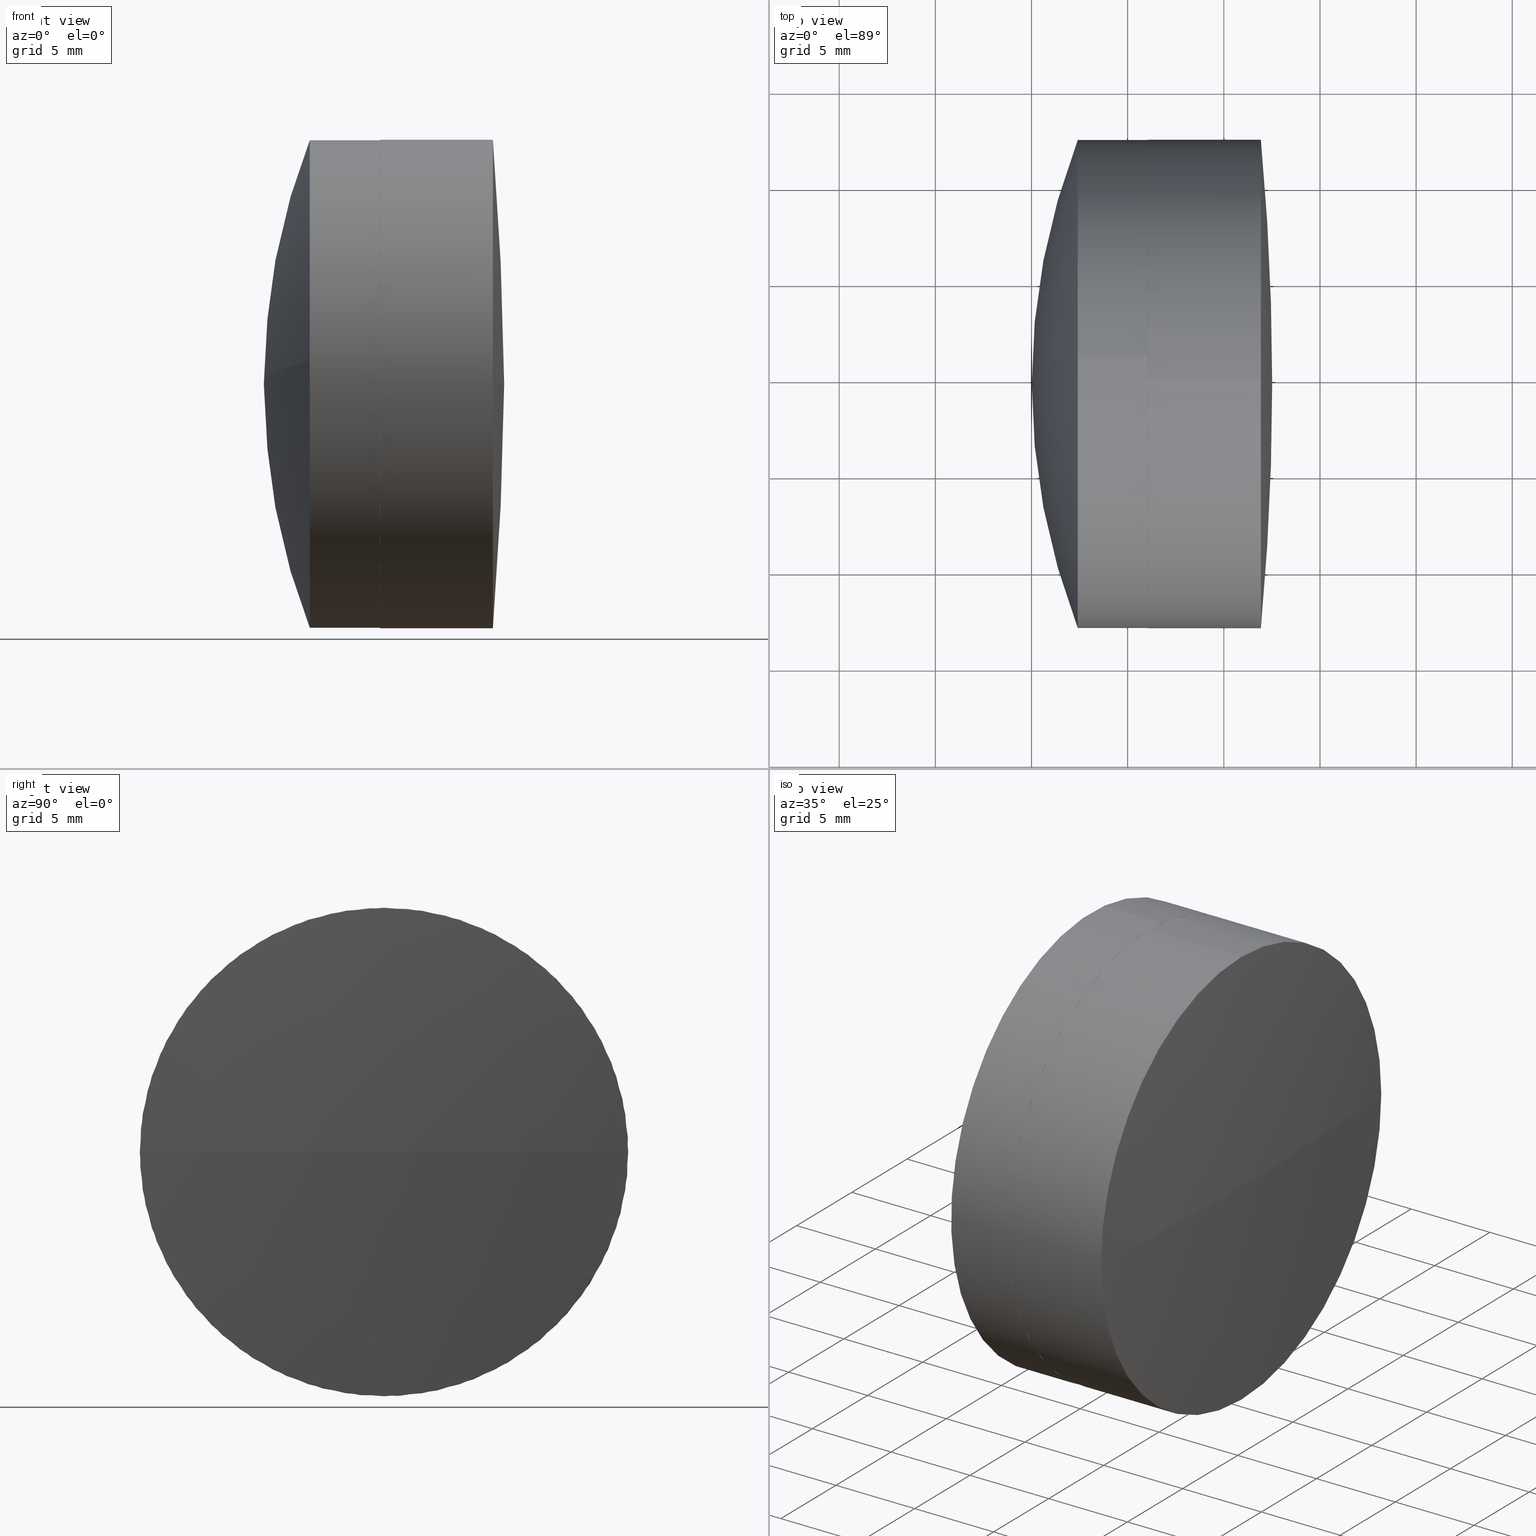
[diagram: canonical four-view strip — front | top / right | iso, engineering-drawing reading convention]
A machine part, canonical four-view strip (front | top / right | iso — engineering-drawing reading convention). The complete STEP part file that produces these views, byte-faithful:
ISO-10303-21;
HEADER;
FILE_DESCRIPTION (( 'STEP AP203' ),
    '1' );
FILE_NAME ('145276.STEP',
    '2024-05-11T06:11:00',
    ( '' ),
    ( '' ),
    'SwSTEP 2.0',
    'SolidWorks 2020',
    '' );
FILE_SCHEMA (( 'CONFIG_CONTROL_DESIGN' ));
ENDSEC;

DATA;
#1 = DIRECTION ( 'NONE',  ( -1.000000000000000000, 2.569559148790645509E-17, 4.163336342344337027E-17 ) ) ;
#2 = CARTESIAN_POINT ( 'NONE',  ( -77.59359883042631623, 28.48110664956988103, -12.64106487517395472 ) ) ;
#3 = DIRECTION ( 'NONE',  ( -1.000000000000000000, 2.569559148790645509E-17, 4.163336342344337027E-17 ) ) ;
#4 = CARTESIAN_POINT ( 'NONE',  ( -79.98416275664021668, 28.48110664956988103, -12.64106487517395649 ) ) ;
#5 = FACE_OUTER_BOUND ( 'NONE', #400, .T. ) ;
#6 = DIRECTION ( 'NONE',  ( -1.000000000000000000, -0.000000000000000000, -0.000000000000000000 ) ) ;
#7 = PERSON_AND_ORGANIZATION_ROLE ( 'classification_officer' ) ;
#8 = CARTESIAN_POINT ( 'NONE',  ( -70.98416275664025932, 29.70318636122672018, 12.69999999999999929 ) ) ;
#9 = FACE_OUTER_BOUND ( 'NONE', #365, .T. ) ;
#10 = VERTEX_POINT ( 'NONE', #410 ) ;
#11 = CC_DESIGN_DATE_AND_TIME_ASSIGNMENT ( #331, #393, ( #387 ) ) ;
#12 = UNCERTAINTY_MEASURE_WITH_UNIT (LENGTH_MEASURE( 1.000000000000000082E-05 ), #212, 'distance_accuracy_value', 'NONE');
#13 = APPROVAL_ROLE ( '' ) ;
#14 = LOCAL_TIME ( 14, 11, 0.000000000000000000, #190 ) ;
#15 = ORIENTED_EDGE ( 'NONE', *, *, #439, .F. ) ;
#16 = EDGE_LOOP ( 'NONE', ( #164, #363, #327, #56 ) ) ;
#17 = EDGE_CURVE ( 'NONE', #338, #135, #186, .T. ) ;
#18 = EDGE_LOOP ( 'NONE', ( #266, #193, #234, #389, #378, #242 ) ) ;
#19 = CIRCLE ( 'NONE', #257, 137.5299999999999727 ) ;
#20 = ORIENTED_EDGE ( 'NONE', *, *, #399, .T. ) ;
#21 = MANIFOLD_SOLID_BREP ( '145276b-1-solid1', #216 ) ;
#22 = VERTEX_POINT ( 'NONE', #29 ) ;
#23 = PERSON_AND_ORGANIZATION_ROLE ( 'design_owner' ) ;
#24 = ORIENTED_EDGE ( 'NONE', *, *, #178, .F. ) ;
#25 = EDGE_CURVE ( 'NONE', #22, #368, #195, .T. ) ;
#26 = DIRECTION ( 'NONE',  ( 4.391276449164055718E-17, 0.09622674894935856482, 0.9953594389900751738 ) ) ;
#27 = AXIS2_PLACEMENT_3D ( 'NONE', #115, #152, #290 ) ;
#28 = AXIS2_PLACEMENT_3D ( 'NONE', #442, #349, #173 ) ;
#29 = CARTESIAN_POINT ( 'NONE',  ( -67.48416275664025932, 29.70318636122672729, 0.000000000000000000 ) ) ;
#30 = EDGE_CURVE ( 'NONE', #201, #428, #425, .T. ) ;
#31 = DIRECTION ( 'NONE',  ( -4.391276449164055102E-17, -0.09622674894935855094, -0.9953594389900750627 ) ) ;
#32 = DIRECTION ( 'NONE',  ( 0.000000000000000000, 1.000000000000000000, 0.000000000000000000 ) ) ;
#33 = CIRCLE ( 'NONE', #437, 12.69999999999999929 ) ;
#34 = CIRCLE ( 'NONE', #249, 12.69999999999999929 ) ;
#35 = DIRECTION ( 'NONE',  ( 0.000000000000000000, 0.9953594389900750627, -0.09622674894935842604 ) ) ;
#36 = DIRECTION ( 'NONE',  ( 0.000000000000000000, 0.000000000000000000, 1.000000000000000000 ) ) ;
#37 =( NAMED_UNIT ( * ) PLANE_ANGLE_UNIT ( ) SI_UNIT ( $, .RADIAN. ) );
#38 = DIRECTION ( 'NONE',  ( -1.000000000000000000, 2.569559148790645509E-17, 4.163336342344337027E-17 ) ) ;
#39 = ADVANCED_FACE ( 'NONE', ( #440 ), #66, .T. ) ;
#40 = SPHERICAL_SURFACE ( 'NONE', #196, 28.77000000000000313 ) ;
#41 = AXIS2_PLACEMENT_3D ( 'NONE', #372, #177, #406 ) ;
#42 = APPROVAL_DATE_TIME ( #236, #46 ) ;
#43 = LOCAL_TIME ( 14, 11, 0.000000000000000000, #188 ) ;
#44 = CARTESIAN_POINT ( 'NONE',  ( -205.0141627566402462, 29.70318636122672018, 0.000000000000000000 ) ) ;
#45 = PERSON_AND_ORGANIZATION ( #50, #375 ) ;
#46 = APPROVAL ( #424, 'δָ��' ) ;
#47 = DIRECTION ( 'NONE',  ( 0.000000000000000000, 0.000000000000000000, 1.000000000000000000 ) ) ;
#48 = PERSON_AND_ORGANIZATION ( #50, #375 ) ;
#49 = ORIENTED_EDGE ( 'NONE', *, *, #17, .F. ) ;
#50 = PERSON ( 'δָ��', 'δָ��', 'δָ��', ('δָ��'), ('δָ��'), ('δָ��') ) ;
#51 = PERSON_AND_ORGANIZATION ( #50, #375 ) ;
#52 = CIRCLE ( 'NONE', #162, 28.77000000000000313 ) ;
#53 = AXIS2_PLACEMENT_3D ( 'NONE', #104, #114, #244 ) ;
#54 = EDGE_LOOP ( 'NONE', ( #203, #171, #20, #63 ) ) ;
#55 = ORIENTED_EDGE ( 'NONE', *, *, #232, .T. ) ;
#56 = ORIENTED_EDGE ( 'NONE', *, *, #116, .F. ) ;
#57 = AXIS2_PLACEMENT_3D ( 'NONE', #113, #386, #77 ) ;
#58 = ORIENTED_EDGE ( 'NONE', *, *, #427, .T. ) ;
#59 = AXIS2_PLACEMENT_3D ( 'NONE', #220, #278, #35 ) ;
#60 = DIRECTION ( 'NONE',  ( 1.000000000000000000, 0.000000000000000000, 0.000000000000000000 ) ) ;
#61 = EDGE_CURVE ( 'NONE', #201, #398, #328, .T. ) ;
#62 = LINE ( 'NONE', #4, #445 ) ;
#63 = ORIENTED_EDGE ( 'NONE', *, *, #439, .T. ) ;
#64 = CIRCLE ( 'NONE', #59, 34.93000000000004945 ) ;
#65 = EDGE_CURVE ( 'NONE', #135, #233, #33, .T. ) ;
#66 = CYLINDRICAL_SURFACE ( 'NONE', #71, 12.69999999999999929 ) ;
#67 = FACE_OUTER_BOUND ( 'NONE', #161, .T. ) ;
#68 = DIRECTION ( 'NONE',  ( -1.000000000000000000, -0.000000000000000000, -0.000000000000000000 ) ) ;
#69 = LINE ( 'NONE', #317, #294 ) ;
#70 = CARTESIAN_POINT ( 'NONE',  ( -73.93899473471948625, 29.70318636122672018, 0.000000000000000000 ) ) ;
#71 = AXIS2_PLACEMENT_3D ( 'NONE', #174, #371, #309 ) ;
#72 = AXIS2_PLACEMENT_3D ( 'NONE', #313, #346, #382 ) ;
#73 = DIRECTION ( 'NONE',  ( 0.000000000000000000, 0.09622674894935845380, 0.9953594389900752848 ) ) ;
#74 = DIRECTION ( 'NONE',  ( 0.000000000000000000, 0.09622674894935845380, 0.9953594389900752848 ) ) ;
#75 = ADVANCED_FACE ( 'NONE', ( #407 ), #239, .T. ) ;
#76 = SPHERICAL_SURFACE ( 'NONE', #96, 28.77000000000000313 ) ;
#77 = DIRECTION ( 'NONE',  ( 0.000000000000000000, 1.000000000000000000, 0.000000000000000000 ) ) ;
#78 = DIRECTION ( 'NONE',  ( -4.391276449164056334E-17, -0.09622674894935859258, -0.9953594389900751738 ) ) ;
#79 = ORIENTED_EDGE ( 'NONE', *, *, #399, .F. ) ;
#80 = EDGE_CURVE ( 'NONE', #263, #345, #169, .T. ) ;
#81 = AXIS2_PLACEMENT_3D ( 'NONE', #248, #384, #74 ) ;
#82 = CIRCLE ( 'NONE', #28, 12.70000000000000107 ) ;
#83 = DIRECTION ( 'NONE',  ( -0.000000000000000000, 0.000000000000000000, -1.000000000000000000 ) ) ;
#84 = PERSON_AND_ORGANIZATION ( #50, #375 ) ;
#85 = VERTEX_POINT ( 'NONE', #168 ) ;
#86 = APPROVAL_STATUS ( 'not_yet_approved' ) ;
#87 = ORIENTED_EDGE ( 'NONE', *, *, #430, .T. ) ;
#88 = CIRCLE ( 'NONE', #27, 12.69999999999999929 ) ;
#89 = SECURITY_CLASSIFICATION ( '', '', #132 ) ;
#90 = ORIENTED_EDGE ( 'NONE', *, *, #30, .T. ) ;
#91 = ORIENTED_EDGE ( 'NONE', *, *, #129, .T. ) ;
#92 = ORIENTED_EDGE ( 'NONE', *, *, #319, .F. ) ;
#93 = DATE_AND_TIME ( #270, #103 ) ;
#94 = CC_DESIGN_PERSON_AND_ORGANIZATION_ASSIGNMENT ( #361, #204, ( #387 ) ) ;
#95 = AXIS2_PLACEMENT_3D ( 'NONE', #245, #269, #205 ) ;
#96 = AXIS2_PLACEMENT_3D ( 'NONE', #352, #280, #32 ) ;
#97 = CARTESIAN_POINT ( 'NONE',  ( -99.75416275664025534, 29.70318636122672018, 0.000000000000000000 ) ) ;
#98 = APPLICATION_PROTOCOL_DEFINITION ( 'international standard', 'config_control_design', 1994, #374 ) ;
#99 = ORIENTED_EDGE ( 'NONE', *, *, #324, .T. ) ;
#100 = EDGE_LOOP ( 'NONE', ( #123, #206, #341, #15 ) ) ;
#101 = VERTEX_POINT ( 'NONE', #304 ) ;
#102 = AXIS2_PLACEMENT_3D ( 'NONE', #423, #149, #36 ) ;
#103 = LOCAL_TIME ( 14, 11, 0.000000000000000000, #227 ) ;
#104 = CARTESIAN_POINT ( 'NONE',  ( -77.59359883042631623, 29.70318636122673084, 5.294805767452579913E-16 ) ) ;
#105 = CARTESIAN_POINT ( 'NONE',  ( -73.93899473471948625, 29.70318636122672018, 0.000000000000000000 ) ) ;
#106 = DIRECTION ( 'NONE',  ( -1.000000000000000000, 2.569559148790645509E-17, 4.163336342344337027E-17 ) ) ;
#107 = DIRECTION ( 'NONE',  ( 0.000000000000000000, 0.000000000000000000, 1.000000000000000000 ) ) ;
#108 = CC_DESIGN_PERSON_AND_ORGANIZATION_ASSIGNMENT ( #51, #7, ( #89 ) ) ;
#109 = CARTESIAN_POINT ( 'NONE',  ( -73.93899473471948625, 29.70318636122672018, -12.69999999999999929 ) ) ;
#110 = AXIS2_PLACEMENT_3D ( 'NONE', #340, #133, #436 ) ;
#111 = AXIS2_PLACEMENT_3D ( 'NONE', #219, #447, #354 ) ;
#112 = CARTESIAN_POINT ( 'NONE',  ( -99.75416275664024113, 29.70318636122673084, 1.452099388353772109E-15 ) ) ;
#113 = CARTESIAN_POINT ( 'NONE',  ( -205.0141627566402462, 29.70318636122672018, 0.000000000000000000 ) ) ;
#114 = DIRECTION ( 'NONE',  ( -1.000000000000000000, 2.569559148790645509E-17, 4.163336342344337027E-17 ) ) ;
#115 = CARTESIAN_POINT ( 'NONE',  ( -68.07179933319122256, 29.70318636122672018, 0.000000000000000000 ) ) ;
#116 = EDGE_CURVE ( 'NONE', #368, #128, #247, .T. ) ;
#117 = DIRECTION ( 'NONE',  ( 0.000000000000000000, 0.09622674894935845380, 0.9953594389900752848 ) ) ;
#118 = AXIS2_PLACEMENT_3D ( 'NONE', #388, #78, #189 ) ;
#119 = AXIS2_PLACEMENT_3D ( 'NONE', #414, #3, #73 ) ;
#120 = PRODUCT_RELATED_PRODUCT_CATEGORY ( 'detail', '', ( #308 ) ) ;
#121 = ORIENTED_EDGE ( 'NONE', *, *, #271, .F. ) ;
#122 = CALENDAR_DATE ( 2024, 11, 5 ) ;
#123 = ORIENTED_EDGE ( 'NONE', *, *, #213, .T. ) ;
#124 = ADVANCED_FACE ( 'NONE', ( #344 ), #172, .T. ) ;
#125 = ORIENTED_EDGE ( 'NONE', *, *, #25, .T. ) ;
#126 = CIRCLE ( 'NONE', #53, 12.70000000000000107 ) ;
#127 = ORIENTED_EDGE ( 'NONE', *, *, #207, .T. ) ;
#128 = VERTEX_POINT ( 'NONE', #131 ) ;
#129 = EDGE_CURVE ( 'NONE', #421, #431, #52, .T. ) ;
#130 = DATE_AND_TIME ( #292, #202 ) ;
#131 = CARTESIAN_POINT ( 'NONE',  ( -68.07179933319122256, 29.70318636122672018, 12.69999999999999929 ) ) ;
#132 = SECURITY_CLASSIFICATION_LEVEL ( 'unclassified' ) ;
#133 = DIRECTION ( 'NONE',  ( 0.000000000000000000, 1.224646799147353207E-16, -1.000000000000000000 ) ) ;
#134 = VERTEX_POINT ( 'NONE', #413 ) ;
#135 = VERTEX_POINT ( 'NONE', #353 ) ;
#136 = CARTESIAN_POINT ( 'NONE',  ( -45.05416275664025960, 29.70318636122672729, -8.252455909085797717E-16 ) ) ;
#137 = AXIS2_PLACEMENT_3D ( 'NONE', #167, #260, #60 ) ;
#138 = CARTESIAN_POINT ( 'NONE',  ( -73.93899473471948625, 29.70318636122673084, 3.773271162598914149E-16 ) ) ;
#139 = CARTESIAN_POINT ( 'NONE',  ( -205.0141627566402462, 29.70318636122672018, 0.000000000000000000 ) ) ;
#140 = CC_DESIGN_PERSON_AND_ORGANIZATION_ASSIGNMENT ( #369, #150, ( #417 ) ) ;
#141 = CYLINDRICAL_SURFACE ( 'NONE', #119, 12.70000000000000107 ) ;
#142 = FACE_OUTER_BOUND ( 'NONE', #329, .T. ) ;
#143 = FACE_OUTER_BOUND ( 'NONE', #155, .T. ) ;
#144 = FACE_OUTER_BOUND ( 'NONE', #158, .T. ) ;
#145 = AXIS2_PLACEMENT_3D ( 'NONE', #318, #107, #217 ) ;
#146 = CC_DESIGN_APPROVAL ( #237, ( #89 ) ) ;
#147 = CARTESIAN_POINT ( 'NONE',  ( -68.07179933319122256, 29.70318636122672018, 0.000000000000000000 ) ) ;
#148 = EDGE_CURVE ( 'NONE', #298, #233, #322, .T. ) ;
#149 = DIRECTION ( 'NONE',  ( -1.000000000000000000, -0.000000000000000000, -0.000000000000000000 ) ) ;
#150 = PERSON_AND_ORGANIZATION_ROLE ( 'creator' ) ;
#151 = PRODUCT_DEFINITION_SHAPE ( 'NONE', 'NONE',  #387 ) ;
#152 = DIRECTION ( 'NONE',  ( -1.000000000000000000, -0.000000000000000000, -0.000000000000000000 ) ) ;
#153 = MECHANICAL_CONTEXT ( 'NONE', #157, 'mechanical' ) ;
#154 = DIRECTION ( 'NONE',  ( 0.000000000000000000, 0.000000000000000000, 1.000000000000000000 ) ) ;
#155 = EDGE_LOOP ( 'NONE', ( #347, #90, #333, #362 ) ) ;
#156 = COORDINATED_UNIVERSAL_TIME_OFFSET ( 8, 0, .AHEAD. ) ;
#157 = APPLICATION_CONTEXT ( 'configuration controlled 3d designs of mechanical parts and assemblies' ) ;
#158 = EDGE_LOOP ( 'NONE', ( #392, #91, #55, #160 ) ) ;
#159 = EDGE_CURVE ( 'NONE', #128, #338, #390, .T. ) ;
#160 = ORIENTED_EDGE ( 'NONE', *, *, #17, .T. ) ;
#161 = EDGE_LOOP ( 'NONE', ( #121, #99, #198, #87, #395, #92 ) ) ;
#162 = AXIS2_PLACEMENT_3D ( 'NONE', #97, #235, #420 ) ;
#163 = ADVANCED_FACE ( 'NONE', ( #279 ), #350, .T. ) ;
#164 = ORIENTED_EDGE ( 'NONE', *, *, #25, .F. ) ;
#165 = COORDINATED_UNIVERSAL_TIME_OFFSET ( 8, 0, .AHEAD. ) ;
#166 = ORIENTED_EDGE ( 'NONE', *, *, #194, .F. ) ;
#167 = CARTESIAN_POINT ( 'NONE',  ( 0.000000000000000000, 0.000000000000000000, 0.000000000000000000 ) ) ;
#168 = CARTESIAN_POINT ( 'NONE',  ( -73.93899473471948625, 30.92526607288358420, 12.64106487517395472 ) ) ;
#169 = CIRCLE ( 'NONE', #95, 12.70000000000000107 ) ;
#170 = LOCAL_TIME ( 14, 11, 0.000000000000000000, #165 ) ;
#171 = ORIENTED_EDGE ( 'NONE', *, *, #80, .T. ) ;
#172 = SPHERICAL_SURFACE ( 'NONE', #176, 34.93000000000004235 ) ;
#173 = DIRECTION ( 'NONE',  ( 0.000000000000000000, 0.09622674894935845380, 0.9953594389900752848 ) ) ;
#174 = CARTESIAN_POINT ( 'NONE',  ( -70.98416275664025932, 29.70318636122672018, 0.000000000000000000 ) ) ;
#175 = DIRECTION ( 'NONE',  ( -4.391276449164056334E-17, -0.09622674894935859258, -0.9953594389900751738 ) ) ;
#176 = AXIS2_PLACEMENT_3D ( 'NONE', #214, #31, #402 ) ;
#177 = DIRECTION ( 'NONE',  ( -4.391276449164055718E-17, -0.09622674894935843992, -0.9953594389900751738 ) ) ;
#178 = EDGE_CURVE ( 'NONE', #366, #298, #88, .T. ) ;
#179 = SPHERICAL_SURFACE ( 'NONE', #343, 28.77000000000000313 ) ;
#180 = DIRECTION ( 'NONE',  ( -0.000000000000000000, 0.000000000000000000, 1.000000000000000000 ) ) ;
#181 = DIRECTION ( 'NONE',  ( 0.000000000000000000, 0.09622674894935845380, 0.9953594389900752848 ) ) ;
#182 = FACE_OUTER_BOUND ( 'NONE', #16, .T. ) ;
#183 = DIRECTION ( 'NONE',  ( -1.000000000000000000, -0.000000000000000000, -0.000000000000000000 ) ) ;
#184 = MANIFOLD_SOLID_BREP ( '145276a-1-solid1', #265 ) ;
#185 = CARTESIAN_POINT ( 'NONE',  ( -99.75416275664025534, 29.70318636122672018, 0.000000000000000000 ) ) ;
#186 = CIRCLE ( 'NONE', #312, 12.69999999999999929 ) ;
#187 = AXIS2_PLACEMENT_3D ( 'NONE', #138, #357, #215 ) ;
#188 = COORDINATED_UNIVERSAL_TIME_OFFSET ( 8, 0, .AHEAD. ) ;
#189 = DIRECTION ( 'NONE',  ( 0.000000000000000000, 0.9953594389900751738, -0.09622674894935857870 ) ) ;
#190 = COORDINATED_UNIVERSAL_TIME_OFFSET ( 8, 0, .AHEAD. ) ;
#191 = DIRECTION ( 'NONE',  ( 0.000000000000000000, 1.000000000000000000, 0.000000000000000000 ) ) ;
#192 = PERSON_AND_ORGANIZATION_ROLE ( 'design_supplier' ) ;
#193 = ORIENTED_EDGE ( 'NONE', *, *, #194, .T. ) ;
#194 = EDGE_CURVE ( 'NONE', #298, #368, #342, .T. ) ;
#195 = CIRCLE ( 'NONE', #110, 137.5299999999999727 ) ;
#196 = AXIS2_PLACEMENT_3D ( 'NONE', #185, #293, #191 ) ;
#197 = APPROVAL_DATE_TIME ( #93, #237 ) ;
#198 = ORIENTED_EDGE ( 'NONE', *, *, #259, .T. ) ;
#199 = ORIENTED_EDGE ( 'NONE', *, *, #430, .F. ) ;
#200 = ADVANCED_FACE ( 'NONE', ( #254 ), #288, .T. ) ;
#201 = VERTEX_POINT ( 'NONE', #221 ) ;
#202 = LOCAL_TIME ( 14, 11, 0.000000000000000000, #156 ) ;
#203 = ORIENTED_EDGE ( 'NONE', *, *, #337, .F. ) ;
#204 = PERSON_AND_ORGANIZATION_ROLE ( 'creator' ) ;
#205 = DIRECTION ( 'NONE',  ( 0.000000000000000000, 0.09622674894935845380, 0.9953594389900752848 ) ) ;
#206 = ORIENTED_EDGE ( 'NONE', *, *, #319, .T. ) ;
#207 = EDGE_CURVE ( 'NONE', #421, #135, #396, .T. ) ;
#208 = CIRCLE ( 'NONE', #335, 12.70000000000000107 ) ;
#209 = CC_DESIGN_SECURITY_CLASSIFICATION ( #89, ( #417 ) ) ;
#210 = VERTEX_POINT ( 'NONE', #2 ) ;
#211 = ORIENTED_EDGE ( 'NONE', *, *, #213, .F. ) ;
#212 =( LENGTH_UNIT ( ) NAMED_UNIT ( * ) SI_UNIT ( .MILLI., .METRE. ) );
#213 = EDGE_CURVE ( 'NONE', #101, #210, #208, .T. ) ;
#214 = CARTESIAN_POINT ( 'NONE',  ( -45.05416275664025960, 29.70318636122672729, -8.252455909085797717E-16 ) ) ;
#215 = DIRECTION ( 'NONE',  ( 0.000000000000000000, 0.09622674894935845380, 0.9953594389900752848 ) ) ;
#216 = CLOSED_SHELL ( 'NONE', ( #39, #225, #283, #367, #275, #163 ) ) ;
#217 = DIRECTION ( 'NONE',  ( 1.000000000000000000, 0.000000000000000000, 0.000000000000000000 ) ) ;
#218 = CARTESIAN_POINT ( 'NONE',  ( -77.59359883042631623, 17.06212148605288448, 1.222079711656841816 ) ) ;
#219 = CARTESIAN_POINT ( 'NONE',  ( -45.05416275664025960, 29.70318636122672729, -8.252455909085797717E-16 ) ) ;
#220 = CARTESIAN_POINT ( 'NONE',  ( -45.05416275664025960, 29.70318636122672729, -8.252455909085797717E-16 ) ) ;
#221 = CARTESIAN_POINT ( 'NONE',  ( -70.98416275664024511, 29.70318636122673084, 8.478924499725538635E-17 ) ) ;
#222 = AXIS2_PLACEMENT_3D ( 'NONE', #70, #325, #316 ) ;
#223 = CARTESIAN_POINT ( 'NONE',  ( -70.98416275664025932, 29.70318636122672018, -12.69999999999999929 ) ) ;
#224 = CALENDAR_DATE ( 2024, 11, 5 ) ;
#225 = ADVANCED_FACE ( 'NONE', ( #142 ), #256, .T. ) ;
#226 = ORIENTED_EDGE ( 'NONE', *, *, #65, .T. ) ;
#227 = COORDINATED_UNIVERSAL_TIME_OFFSET ( 8, 0, .AHEAD. ) ;
#228 = EDGE_LOOP ( 'NONE', ( #296, #238, #297, #300 ) ) ;
#229 = VECTOR ( 'NONE', #415, 1000.000000000000000 ) ;
#230 = APPROVAL_PERSON_ORGANIZATION ( #268, #380, #301 ) ;
#231 = ORIENTED_EDGE ( 'NONE', *, *, #159, .F. ) ;
#232 = EDGE_CURVE ( 'NONE', #431, #338, #408, .T. ) ;
#233 = VERTEX_POINT ( 'NONE', #109 ) ;
#234 = ORIENTED_EDGE ( 'NONE', *, *, #116, .T. ) ;
#235 = DIRECTION ( 'NONE',  ( 0.000000000000000000, 1.224646799147353207E-16, -1.000000000000000000 ) ) ;
#236 = DATE_AND_TIME ( #224, #43 ) ;
#237 = APPROVAL ( #86, 'δָ��' ) ;
#238 = ORIENTED_EDGE ( 'NONE', *, *, #61, .T. ) ;
#239 = SPHERICAL_SURFACE ( 'NONE', #284, 34.93000000000004235 ) ;
#240 = AXIS2_PLACEMENT_3D ( 'NONE', #405, #26, #273 ) ;
#241 = APPROVAL_PERSON_ORGANIZATION ( #45, #46, #13 ) ;
#242 = ORIENTED_EDGE ( 'NONE', *, *, #291, .F. ) ;
#243 = EDGE_CURVE ( 'NONE', #22, #366, #19, .T. ) ;
#244 = DIRECTION ( 'NONE',  ( 0.000000000000000000, 0.09622674894935845380, 0.9953594389900752848 ) ) ;
#245 = CARTESIAN_POINT ( 'NONE',  ( -77.59359883042631623, 29.70318636122673084, 5.294805767452579913E-16 ) ) ;
#246 = DIRECTION ( 'NONE',  ( -1.000000000000000000, 2.569559148790645509E-17, 4.163336342344337027E-17 ) ) ;
#247 = CIRCLE ( 'NONE', #446, 12.69999999999999929 ) ;
#248 = CARTESIAN_POINT ( 'NONE',  ( -73.93899473471948625, 29.70318636122673084, 3.773271162598914149E-16 ) ) ;
#249 = AXIS2_PLACEMENT_3D ( 'NONE', #147, #183, #320 ) ;
#250 = CARTESIAN_POINT ( 'NONE',  ( -68.07179933319123677, 42.40318636122695750, 0.000000000000000000 ) ) ;
#251 = CARTESIAN_POINT ( 'NONE',  ( -77.59359883042631623, 29.70318636122673084, 5.294805767452579913E-16 ) ) ;
#252 = DESIGN_CONTEXT ( 'detailed design', #374, 'design' ) ;
#253 = DIRECTION ( 'NONE',  ( 0.000000000000000000, 0.09622674894935845380, 0.9953594389900752848 ) ) ;
#254 = FACE_OUTER_BOUND ( 'NONE', #228, .T. ) ;
#255 = SHAPE_DEFINITION_REPRESENTATION ( #151, #339 ) ;
#256 = SPHERICAL_SURFACE ( 'NONE', #358, 137.5299999999999727 ) ;
#257 = AXIS2_PLACEMENT_3D ( 'NONE', #139, #180, #281 ) ;
#258 = AXIS2_PLACEMENT_3D ( 'NONE', #355, #426, #154 ) ;
#259 = EDGE_CURVE ( 'NONE', #398, #85, #276, .T. ) ;
#260 = DIRECTION ( 'NONE',  ( 0.000000000000000000, 0.000000000000000000, 1.000000000000000000 ) ) ;
#261 = ORIENTED_EDGE ( 'NONE', *, *, #178, .T. ) ;
#262 = PERSON_AND_ORGANIZATION ( #50, #375 ) ;
#263 = VERTEX_POINT ( 'NONE', #218 ) ;
#264 = ORIENTED_EDGE ( 'NONE', *, *, #291, .T. ) ;
#265 = CLOSED_SHELL ( 'NONE', ( #303, #200, #75, #124, #364, #444 ) ) ;
#266 = ORIENTED_EDGE ( 'NONE', *, *, #148, .F. ) ;
#267 = ORIENTED_EDGE ( 'NONE', *, *, #307, .T. ) ;
#268 = PERSON_AND_ORGANIZATION ( #50, #375 ) ;
#269 = DIRECTION ( 'NONE',  ( -1.000000000000000000, 2.569559148790645509E-17, 4.163336342344337027E-17 ) ) ;
#270 = CALENDAR_DATE ( 2024, 11, 5 ) ;
#271 = EDGE_CURVE ( 'NONE', #10, #210, #62, .T. ) ;
#272 = DIRECTION ( 'NONE',  ( -4.391276449164055102E-17, -0.09622674894935855094, -0.9953594389900750627 ) ) ;
#273 = DIRECTION ( 'NONE',  ( 0.000000000000000000, -0.9953594389900751738, 0.09622674894935856482 ) ) ;
#274 = DIRECTION ( 'NONE',  ( 0.000000000000000000, 0.000000000000000000, 1.000000000000000000 ) ) ;
#275 = ADVANCED_FACE ( 'NONE', ( #182 ), #285, .T. ) ;
#276 = CIRCLE ( 'NONE', #81, 12.70000000000000107 ) ;
#277 = DIRECTION ( 'NONE',  ( 0.000000000000000000, 0.9953594389900750627, -0.09622674894935855094 ) ) ;
#278 = DIRECTION ( 'NONE',  ( -4.391276449164055718E-17, -0.09622674894935843992, -0.9953594389900751738 ) ) ;
#279 = FACE_OUTER_BOUND ( 'NONE', #18, .T. ) ;
#280 = DIRECTION ( 'NONE',  ( 0.000000000000000000, 0.000000000000000000, -1.000000000000000000 ) ) ;
#281 = DIRECTION ( 'NONE',  ( 1.000000000000000000, 0.000000000000000000, 0.000000000000000000 ) ) ;
#282 = CARTESIAN_POINT ( 'NONE',  ( -77.59359883042631623, 29.70318636122673084, 5.294805767452579913E-16 ) ) ;
#283 = ADVANCED_FACE ( 'NONE', ( #144 ), #40, .F. ) ;
#284 = AXIS2_PLACEMENT_3D ( 'NONE', #136, #272, #277 ) ;
#285 = SPHERICAL_SURFACE ( 'NONE', #57, 137.5299999999999727 ) ;
#286 = CC_DESIGN_APPROVAL ( #380, ( #417 ) ) ;
#287 = CARTESIAN_POINT ( 'NONE',  ( -68.07179933319123677, 17.00318636122648996, -1.555301434917167226E-15 ) ) ;
#288 = SPHERICAL_SURFACE ( 'NONE', #118, 28.77000000000000313 ) ;
#289 = APPROVAL_STATUS ( 'not_yet_approved' ) ;
#290 = DIRECTION ( 'NONE',  ( 0.000000000000000000, 0.000000000000000000, 1.000000000000000000 ) ) ;
#291 = EDGE_CURVE ( 'NONE', #233, #431, #370, .T. ) ;
#292 = CALENDAR_DATE ( 2024, 11, 5 ) ;
#293 = DIRECTION ( 'NONE',  ( 0.000000000000000000, 0.000000000000000000, -1.000000000000000000 ) ) ;
#294 = VECTOR ( 'NONE', #1, 1000.000000000000000 ) ;
#295 = DATE_TIME_ROLE ( 'classification_date' ) ;
#296 = ORIENTED_EDGE ( 'NONE', *, *, #30, .F. ) ;
#297 = ORIENTED_EDGE ( 'NONE', *, *, #324, .F. ) ;
#298 = VERTEX_POINT ( 'NONE', #326 ) ;
#299 =( GEOMETRIC_REPRESENTATION_CONTEXT ( 3 ) GLOBAL_UNCERTAINTY_ASSIGNED_CONTEXT ( ( #12 ) ) GLOBAL_UNIT_ASSIGNED_CONTEXT ( ( #212, #37, #422 ) ) REPRESENTATION_CONTEXT ( 'NONE', 'WORKASPACE' ) );
#300 = ORIENTED_EDGE ( 'NONE', *, *, #427, .F. ) ;
#301 = APPROVAL_ROLE ( '' ) ;
#302 = ORIENTED_EDGE ( 'NONE', *, *, #65, .F. ) ;
#303 = ADVANCED_FACE ( 'NONE', ( #9 ), #416, .T. ) ;
#304 = CARTESIAN_POINT ( 'NONE',  ( -77.59359883042631623, 42.34425123640058075, -1.222079711656842482 ) ) ;
#305 = AXIS2_PLACEMENT_3D ( 'NONE', #379, #106, #253 ) ;
#306 = ORIENTED_EDGE ( 'NONE', *, *, #243, .F. ) ;
#307 = EDGE_CURVE ( 'NONE', #85, #428, #330, .T. ) ;
#308 = PRODUCT ( '145276', '145276', '', ( #153 ) ) ;
#309 = DIRECTION ( 'NONE',  ( 0.000000000000000000, 0.000000000000000000, 1.000000000000000000 ) ) ;
#310 = CARTESIAN_POINT ( 'NONE',  ( -77.59359883042631623, 30.92526607288358420, 12.64106487517395472 ) ) ;
#311 = DIRECTION ( 'NONE',  ( 0.000000000000000000, 0.000000000000000000, 1.000000000000000000 ) ) ;
#312 = AXIS2_PLACEMENT_3D ( 'NONE', #376, #441, #311 ) ;
#313 = CARTESIAN_POINT ( 'NONE',  ( -79.98416275664021668, 29.70318636122673084, 6.290077934722955622E-16 ) ) ;
#314 = APPROVAL_PERSON_ORGANIZATION ( #262, #237, #401 ) ;
#315 = CIRCLE ( 'NONE', #111, 34.93000000000004945 ) ;
#316 = DIRECTION ( 'NONE',  ( 0.000000000000000000, 0.000000000000000000, 1.000000000000000000 ) ) ;
#317 = CARTESIAN_POINT ( 'NONE',  ( -79.98416275664021668, 30.92526607288358420, 12.64106487517395649 ) ) ;
#318 = CARTESIAN_POINT ( 'NONE',  ( -99.75416275664025534, 29.70318636122672018, 0.000000000000000000 ) ) ;
#319 = EDGE_CURVE ( 'NONE', #210, #263, #438, .T. ) ;
#320 = DIRECTION ( 'NONE',  ( 0.000000000000000000, 0.000000000000000000, 1.000000000000000000 ) ) ;
#321 = DIRECTION ( 'NONE',  ( 0.000000000000000000, 0.9953594389900751738, -0.09622674894935857870 ) ) ;
#322 = LINE ( 'NONE', #223, #229 ) ;
#323 = DATE_AND_TIME ( #122, #14 ) ;
#324 = EDGE_CURVE ( 'NONE', #10, #398, #82, .T. ) ;
#325 = DIRECTION ( 'NONE',  ( -1.000000000000000000, -0.000000000000000000, -0.000000000000000000 ) ) ;
#326 = CARTESIAN_POINT ( 'NONE',  ( -68.07179933319122256, 29.70318636122672018, -12.69999999999999929 ) ) ;
#327 = ORIENTED_EDGE ( 'NONE', *, *, #356, .F. ) ;
#328 = CIRCLE ( 'NONE', #41, 28.76999999999999957 ) ;
#329 = EDGE_LOOP ( 'NONE', ( #306, #125, #166, #24 ) ) ;
#330 = CIRCLE ( 'NONE', #187, 12.70000000000000107 ) ;
#331 = DATE_AND_TIME ( #435, #170 ) ;
#332 = EDGE_LOOP ( 'NONE', ( #261, #397, #302, #49, #231, #334 ) ) ;
#333 = ORIENTED_EDGE ( 'NONE', *, *, #307, .F. ) ;
#334 = ORIENTED_EDGE ( 'NONE', *, *, #356, .T. ) ;
#335 = AXIS2_PLACEMENT_3D ( 'NONE', #251, #359, #117 ) ;
#336 = CIRCLE ( 'NONE', #305, 12.70000000000000107 ) ;
#337 = EDGE_CURVE ( 'NONE', #263, #134, #64, .T. ) ;
#338 = VERTEX_POINT ( 'NONE', #409 ) ;
#339 = ADVANCED_BREP_SHAPE_REPRESENTATION ( '145276', ( #21, #184, #137 ), #299 ) ;
#340 = CARTESIAN_POINT ( 'NONE',  ( -205.0141627566402462, 29.70318636122672018, 0.000000000000000000 ) ) ;
#341 = ORIENTED_EDGE ( 'NONE', *, *, #337, .T. ) ;
#342 = CIRCLE ( 'NONE', #102, 12.69999999999999929 ) ;
#343 = AXIS2_PLACEMENT_3D ( 'NONE', #112, #175, #321 ) ;
#344 = FACE_OUTER_BOUND ( 'NONE', #54, .T. ) ;
#345 = VERTEX_POINT ( 'NONE', #310 ) ;
#346 = DIRECTION ( 'NONE',  ( -1.000000000000000000, 2.569559148790645509E-17, 4.163336342344337027E-17 ) ) ;
#347 = ORIENTED_EDGE ( 'NONE', *, *, #61, .F. ) ;
#348 = VECTOR ( 'NONE', #6, 1000.000000000000000 ) ;
#349 = DIRECTION ( 'NONE',  ( -1.000000000000000000, 2.569559148790645509E-17, 4.163336342344337027E-17 ) ) ;
#350 = CYLINDRICAL_SURFACE ( 'NONE', #403, 12.69999999999999929 ) ;
#351 = CC_DESIGN_PERSON_AND_ORGANIZATION_ASSIGNMENT ( #48, #192, ( #417 ) ) ;
#352 = CARTESIAN_POINT ( 'NONE',  ( -99.75416275664025534, 29.70318636122672018, 0.000000000000000000 ) ) ;
#353 = CARTESIAN_POINT ( 'NONE',  ( -73.93899473471948625, 42.40318636122670881, 0.000000000000000000 ) ) ;
#354 = DIRECTION ( 'NONE',  ( 0.000000000000000000, -0.9953594389900750627, 0.09622674894935855094 ) ) ;
#355 = CARTESIAN_POINT ( 'NONE',  ( -73.93899473471948625, 29.70318636122672018, 0.000000000000000000 ) ) ;
#356 = EDGE_CURVE ( 'NONE', #128, #366, #34, .T. ) ;
#357 = DIRECTION ( 'NONE',  ( -1.000000000000000000, 2.569559148790645509E-17, 4.163336342344337027E-17 ) ) ;
#358 = AXIS2_PLACEMENT_3D ( 'NONE', #44, #83, #360 ) ;
#359 = DIRECTION ( 'NONE',  ( -1.000000000000000000, 2.569559148790645509E-17, 4.163336342344337027E-17 ) ) ;
#360 = DIRECTION ( 'NONE',  ( 0.000000000000000000, 1.000000000000000000, 0.000000000000000000 ) ) ;
#361 = PERSON_AND_ORGANIZATION ( #50, #375 ) ;
#362 = ORIENTED_EDGE ( 'NONE', *, *, #259, .F. ) ;
#363 = ORIENTED_EDGE ( 'NONE', *, *, #243, .T. ) ;
#364 = ADVANCED_FACE ( 'NONE', ( #143 ), #179, .T. ) ;
#365 = EDGE_LOOP ( 'NONE', ( #58, #432, #211, #79, #199, #267 ) ) ;
#366 = VERTEX_POINT ( 'NONE', #250 ) ;
#367 = ADVANCED_FACE ( 'NONE', ( #5 ), #76, .F. ) ;
#368 = VERTEX_POINT ( 'NONE', #287 ) ;
#369 = PERSON_AND_ORGANIZATION ( #50, #375 ) ;
#370 = CIRCLE ( 'NONE', #258, 12.69999999999999929 ) ;
#371 = DIRECTION ( 'NONE',  ( -1.000000000000000000, -0.000000000000000000, -0.000000000000000000 ) ) ;
#372 = CARTESIAN_POINT ( 'NONE',  ( -99.75416275664024113, 29.70318636122673084, 1.452099388353772109E-15 ) ) ;
#373 = DIRECTION ( 'NONE',  ( 0.000000000000000000, 0.000000000000000000, 1.000000000000000000 ) ) ;
#374 = APPLICATION_CONTEXT ( 'configuration controlled 3d designs of mechanical parts and assemblies' ) ;
#375 = ORGANIZATION ( 'δָ��', 'δָ��', '' ) ;
#376 = CARTESIAN_POINT ( 'NONE',  ( -73.93899473471948625, 29.70318636122672018, 0.000000000000000000 ) ) ;
#377 = CARTESIAN_POINT ( 'NONE',  ( -73.93899473471948625, 42.34425123640068733, -1.222079711656854251 ) ) ;
#378 = ORIENTED_EDGE ( 'NONE', *, *, #232, .F. ) ;
#379 = CARTESIAN_POINT ( 'NONE',  ( -73.93899473471948625, 29.70318636122673084, 3.773271162598914149E-16 ) ) ;
#380 = APPROVAL ( #289, 'δָ��' ) ;
#381 = CARTESIAN_POINT ( 'NONE',  ( -70.98416275664025932, 29.70318636122672018, 0.000000000000000000 ) ) ;
#382 = DIRECTION ( 'NONE',  ( 0.000000000000000000, 0.09622674894935845380, 0.9953594389900752848 ) ) ;
#383 = AXIS2_PLACEMENT_3D ( 'NONE', #282, #246, #181 ) ;
#384 = DIRECTION ( 'NONE',  ( -1.000000000000000000, 2.569559148790645509E-17, 4.163336342344337027E-17 ) ) ;
#385 = CARTESIAN_POINT ( 'NONE',  ( -73.93899473471948625, 17.00318636122673155, -1.555301434917137447E-15 ) ) ;
#386 = DIRECTION ( 'NONE',  ( -0.000000000000000000, 0.000000000000000000, -1.000000000000000000 ) ) ;
#387 = PRODUCT_DEFINITION ( 'δ֪', '', #417, #252 ) ;
#388 = CARTESIAN_POINT ( 'NONE',  ( -99.75416275664024113, 29.70318636122673084, 1.452099388353772109E-15 ) ) ;
#389 = ORIENTED_EDGE ( 'NONE', *, *, #159, .T. ) ;
#390 = LINE ( 'NONE', #8, #348 ) ;
#391 = CC_DESIGN_APPROVAL ( #46, ( #387 ) ) ;
#392 = ORIENTED_EDGE ( 'NONE', *, *, #207, .F. ) ;
#393 = DATE_TIME_ROLE ( 'creation_date' ) ;
#394 = CC_DESIGN_DATE_AND_TIME_ASSIGNMENT ( #130, #295, ( #89 ) ) ;
#395 = ORIENTED_EDGE ( 'NONE', *, *, #80, .F. ) ;
#396 = CIRCLE ( 'NONE', #145, 28.77000000000000313 ) ;
#397 = ORIENTED_EDGE ( 'NONE', *, *, #148, .T. ) ;
#398 = VERTEX_POINT ( 'NONE', #419 ) ;
#399 = EDGE_CURVE ( 'NONE', #345, #101, #126, .T. ) ;
#400 = EDGE_LOOP ( 'NONE', ( #429, #127, #226, #264 ) ) ;
#401 = APPROVAL_ROLE ( '' ) ;
#402 = DIRECTION ( 'NONE',  ( 0.000000000000000000, 0.9953594389900750627, -0.09622674894935855094 ) ) ;
#403 = AXIS2_PLACEMENT_3D ( 'NONE', #381, #418, #47 ) ;
#404 = APPLICATION_PROTOCOL_DEFINITION ( 'international standard', 'config_control_design', 1994, #157 ) ;
#405 = CARTESIAN_POINT ( 'NONE',  ( -99.75416275664024113, 29.70318636122673084, 1.452099388353772109E-15 ) ) ;
#406 = DIRECTION ( 'NONE',  ( 0.000000000000000000, 0.9953594389900751738, -0.09622674894935845380 ) ) ;
#407 = FACE_OUTER_BOUND ( 'NONE', #100, .T. ) ;
#408 = CIRCLE ( 'NONE', #222, 12.69999999999999929 ) ;
#409 = CARTESIAN_POINT ( 'NONE',  ( -73.93899473471948625, 29.70318636122672018, 12.69999999999999929 ) ) ;
#410 = CARTESIAN_POINT ( 'NONE',  ( -73.93899473471948625, 28.48110664956988103, -12.64106487517395472 ) ) ;
#411 = CC_DESIGN_PERSON_AND_ORGANIZATION_ASSIGNMENT ( #84, #23, ( #308 ) ) ;
#412 = CARTESIAN_POINT ( 'NONE',  ( -70.98416275664025932, 29.70318636122672373, 0.000000000000000000 ) ) ;
#413 = CARTESIAN_POINT ( 'NONE',  ( -79.98416275664030195, 29.70318636122673084, 4.231936315395461855E-16 ) ) ;
#414 = CARTESIAN_POINT ( 'NONE',  ( -79.98416275664021668, 29.70318636122673084, 6.290077934722955622E-16 ) ) ;
#415 = DIRECTION ( 'NONE',  ( -1.000000000000000000, -0.000000000000000000, -0.000000000000000000 ) ) ;
#416 = CYLINDRICAL_SURFACE ( 'NONE', #72, 12.70000000000000107 ) ;
#417 = PRODUCT_DEFINITION_FORMATION_WITH_SPECIFIED_SOURCE ( '�κ�', '', #308, .NOT_KNOWN. ) ;
#418 = DIRECTION ( 'NONE',  ( -1.000000000000000000, -0.000000000000000000, -0.000000000000000000 ) ) ;
#419 = CARTESIAN_POINT ( 'NONE',  ( -73.93899473471948625, 17.06212148605277079, 1.222079711656853140 ) ) ;
#420 = DIRECTION ( 'NONE',  ( 0.000000000000000000, 1.000000000000000000, 1.224646799147353454E-16 ) ) ;
#421 = VERTEX_POINT ( 'NONE', #412 ) ;
#422 =( NAMED_UNIT ( * ) SI_UNIT ( $, .STERADIAN. ) SOLID_ANGLE_UNIT ( ) );
#423 = CARTESIAN_POINT ( 'NONE',  ( -68.07179933319122256, 29.70318636122672018, 0.000000000000000000 ) ) ;
#424 = APPROVAL_STATUS ( 'not_yet_approved' ) ;
#425 = CIRCLE ( 'NONE', #240, 28.77000000000000313 ) ;
#426 = DIRECTION ( 'NONE',  ( -1.000000000000000000, -0.000000000000000000, -0.000000000000000000 ) ) ;
#427 = EDGE_CURVE ( 'NONE', #428, #10, #336, .T. ) ;
#428 = VERTEX_POINT ( 'NONE', #377 ) ;
#429 = ORIENTED_EDGE ( 'NONE', *, *, #129, .F. ) ;
#430 = EDGE_CURVE ( 'NONE', #85, #345, #69, .T. ) ;
#431 = VERTEX_POINT ( 'NONE', #385 ) ;
#432 = ORIENTED_EDGE ( 'NONE', *, *, #271, .T. ) ;
#433 = APPROVAL_DATE_TIME ( #323, #380 ) ;
#434 = CARTESIAN_POINT ( 'NONE',  ( -68.07179933319122256, 29.70318636122672018, 0.000000000000000000 ) ) ;
#435 = CALENDAR_DATE ( 2024, 11, 5 ) ;
#436 = DIRECTION ( 'NONE',  ( 0.000000000000000000, 1.000000000000000000, 1.224646799147353207E-16 ) ) ;
#437 = AXIS2_PLACEMENT_3D ( 'NONE', #105, #443, #274 ) ;
#438 = CIRCLE ( 'NONE', #383, 12.70000000000000107 ) ;
#439 = EDGE_CURVE ( 'NONE', #101, #134, #315, .T. ) ;
#440 = FACE_OUTER_BOUND ( 'NONE', #332, .T. ) ;
#441 = DIRECTION ( 'NONE',  ( -1.000000000000000000, -0.000000000000000000, -0.000000000000000000 ) ) ;
#442 = CARTESIAN_POINT ( 'NONE',  ( -73.93899473471948625, 29.70318636122673084, 3.773271162598914149E-16 ) ) ;
#443 = DIRECTION ( 'NONE',  ( -1.000000000000000000, -0.000000000000000000, -0.000000000000000000 ) ) ;
#444 = ADVANCED_FACE ( 'NONE', ( #67 ), #141, .T. ) ;
#445 = VECTOR ( 'NONE', #38, 1000.000000000000000 ) ;
#446 = AXIS2_PLACEMENT_3D ( 'NONE', #434, #68, #373 ) ;
#447 = DIRECTION ( 'NONE',  ( 4.391276449164055718E-17, 0.09622674894935856482, 0.9953594389900751738 ) ) ;
ENDSEC;
END-ISO-10303-21;
